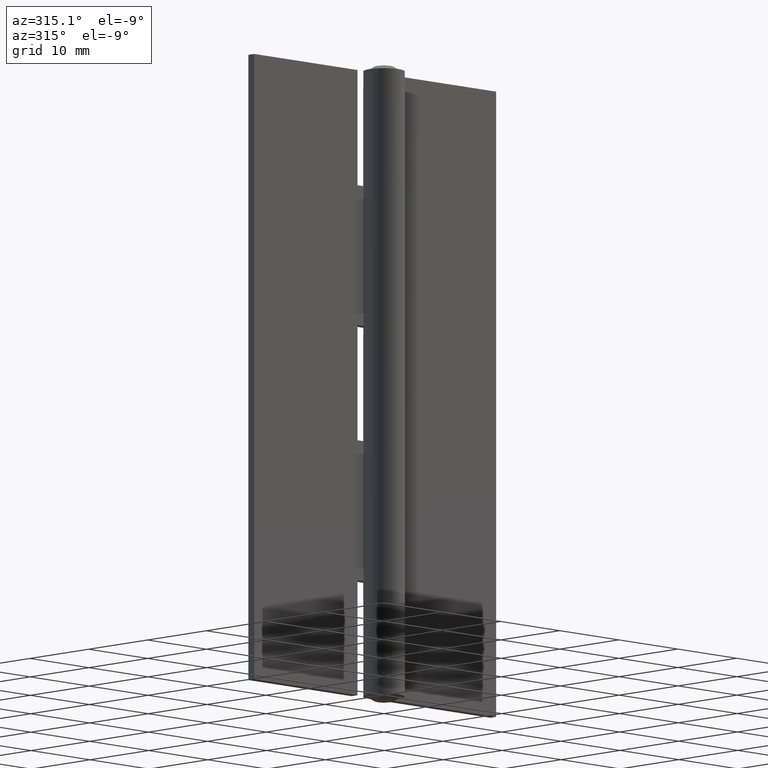
[diagram: clean part render]
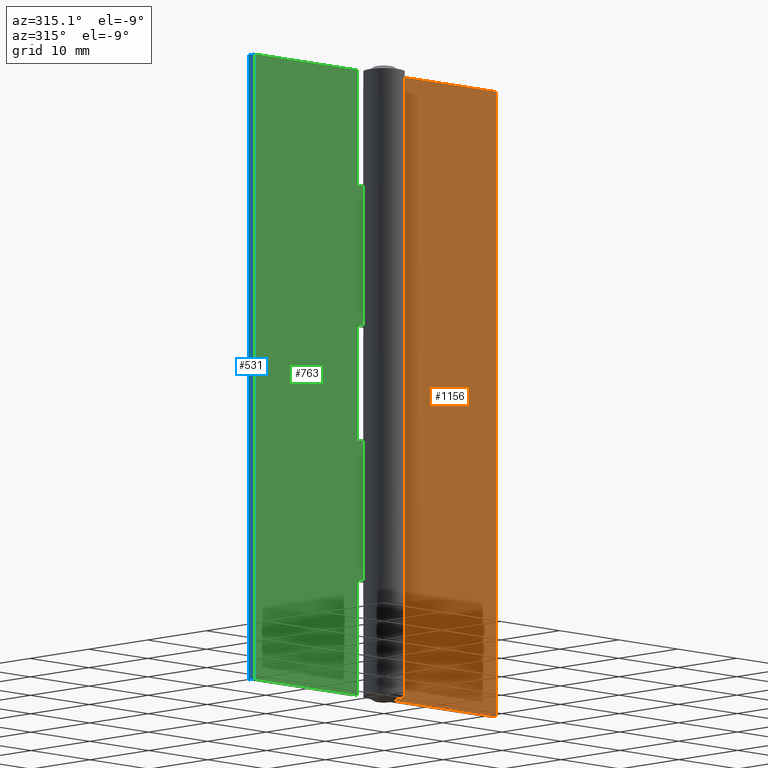
[diagram: same view with three faces highlighted in distinct colors, each labeled with its STEP entity id]
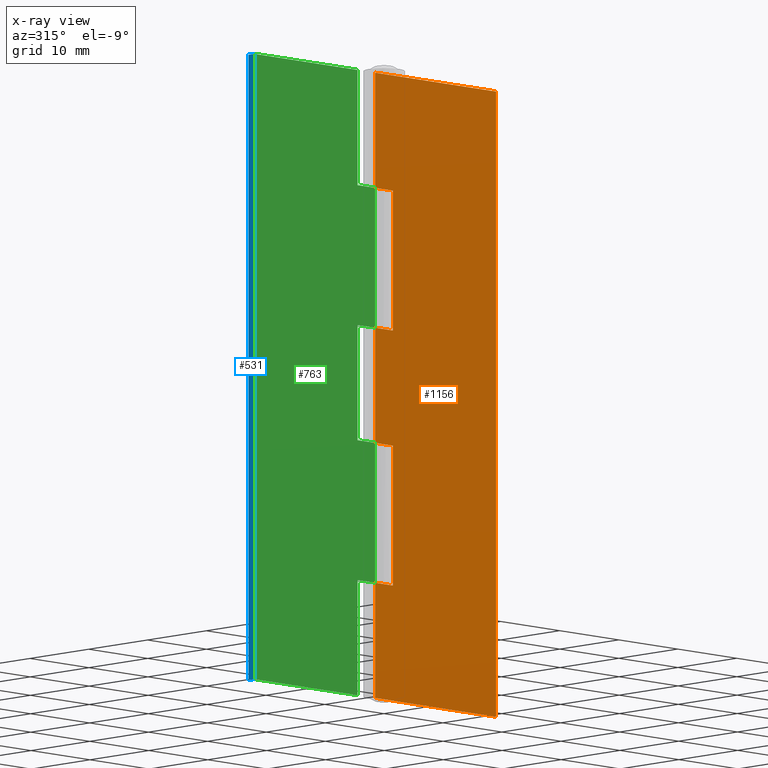
[diagram: x-ray of the same camera — body ghosted, the three highlighted faces saturated]
A machine part, auxiliary view with three faces highlighted in distinct colors.
The next image is the same camera in x-ray (body ghosted, the three faces saturated) — at least one of them is partly hidden behind the body in this view.
Their STEP definitions:

[orange] entity #1156 — the highlighted face is a freeform B-spline surface patch.
#790=CARTESIAN_POINT('',(0.0,1.499999000000000,14.0));
#791=VERTEX_POINT('',#790);
#826=CARTESIAN_POINT('',(0.0,1.499999000000000,0.0));
#827=VERTEX_POINT('',#826);
#856=CARTESIAN_POINT('',(0.0,1.499999000000000,14.0));
#857=CARTESIAN_POINT('',(0.0,1.499999000000000,0.0));
#858=QUASI_UNIFORM_CURVE('',1,(#856,#857),.UNSPECIFIED.,.F.,.U.);
#859=EDGE_CURVE('',#791,#827,#858,.T.);
#922=CARTESIAN_POINT('',(0.0,1.499999000000000,62.0));
#923=VERTEX_POINT('',#922);
#953=CARTESIAN_POINT('',(0.0,1.499999000000000,76.0));
#954=VERTEX_POINT('',#953);
#955=CARTESIAN_POINT('',(0.0,1.499999000000000,76.0));
#956=CARTESIAN_POINT('',(0.0,1.499999000000000,62.0));
#957=QUASI_UNIFORM_CURVE('',1,(#955,#956),.UNSPECIFIED.,.F.,.U.);
#958=EDGE_CURVE('',#954,#923,#957,.T.);
#1015=CARTESIAN_POINT('',(0.0,1.499999000000000,45.0));
#1016=VERTEX_POINT('',#1015);
#1050=CARTESIAN_POINT('',(0.0,1.499999000000000,31.0));
#1051=VERTEX_POINT('',#1050);
#1081=CARTESIAN_POINT('',(0.0,1.499999000000000,45.0));
#1082=CARTESIAN_POINT('',(0.0,1.499999000000000,31.0));
#1083=QUASI_UNIFORM_CURVE('',1,(#1081,#1082),.UNSPECIFIED.,.F.,.U.);
#1084=EDGE_CURVE('',#1016,#1051,#1083,.T.);
#1089=CARTESIAN_POINT('',(-1.023974960267020,1.499999000000000,79.796199852697242));
#1090=CARTESIAN_POINT('',(-1.023974960267020,1.499999000000000,-3.796201891176099));
#1091=CARTESIAN_POINT('',(21.523975510119872,1.499999000000000,79.796199852697242));
#1092=CARTESIAN_POINT('',(21.523975510119872,1.499999000000000,-3.796201891176099));
#1093=B_SPLINE_SURFACE_WITH_KNOTS('',1,1,((#1089,#1091),(#1090,#1092)),.UNSPECIFIED.,.F.,.F.,.U.,(2,2),(2,2),(0.0,83.592401743873339),(0.0,22.547950470386890),.UNSPECIFIED.);
#1094=CARTESIAN_POINT('',(3.000000000000085,1.499998999999974,62.0));
#1095=VERTEX_POINT('',#1094);
#1096=CARTESIAN_POINT('',(3.000000000000085,1.499998999999974,45.0));
#1097=VERTEX_POINT('',#1096);
#1098=CARTESIAN_POINT('',(3.000000000000085,1.499998999999974,62.0));
#1099=CARTESIAN_POINT('',(3.000000000000085,1.499998999999974,45.0));
#1100=QUASI_UNIFORM_CURVE('',1,(#1098,#1099),.UNSPECIFIED.,.F.,.U.);
#1101=EDGE_CURVE('',#1095,#1097,#1100,.T.);
#1102=ORIENTED_EDGE('',*,*,#1101,.T.);
#1103=CARTESIAN_POINT('',(3.000000000000085,1.499998999999974,45.0));
#1104=CARTESIAN_POINT('',(0.0,1.499999000000000,45.0));
#1105=QUASI_UNIFORM_CURVE('',1,(#1103,#1104),.UNSPECIFIED.,.F.,.U.);
#1106=EDGE_CURVE('',#1097,#1016,#1105,.T.);
#1107=ORIENTED_EDGE('',*,*,#1106,.T.);
#1108=ORIENTED_EDGE('',*,*,#1084,.T.);
#1109=CARTESIAN_POINT('',(3.000000000000085,1.499998999999974,31.0));
#1110=VERTEX_POINT('',#1109);
#1111=CARTESIAN_POINT('',(0.0,1.499999000000000,31.0));
#1112=CARTESIAN_POINT('',(3.000000000000085,1.499998999999974,31.0));
#1113=QUASI_UNIFORM_CURVE('',1,(#1111,#1112),.UNSPECIFIED.,.F.,.U.);
#1114=EDGE_CURVE('',#1051,#1110,#1113,.T.);
#1115=ORIENTED_EDGE('',*,*,#1114,.T.);
#1116=CARTESIAN_POINT('',(3.000000000000085,1.499998999999974,14.0));
#1117=VERTEX_POINT('',#1116);
#1118=CARTESIAN_POINT('',(3.000000000000085,1.499998999999974,31.0));
#1119=CARTESIAN_POINT('',(3.000000000000085,1.499998999999974,14.0));
#1120=QUASI_UNIFORM_CURVE('',1,(#1118,#1119),.UNSPECIFIED.,.F.,.U.);
#1121=EDGE_CURVE('',#1110,#1117,#1120,.T.);
#1122=ORIENTED_EDGE('',*,*,#1121,.T.);
#1123=CARTESIAN_POINT('',(3.000000000000085,1.499998999999974,14.0));
#1124=CARTESIAN_POINT('',(0.0,1.499999000000000,14.0));
#1125=QUASI_UNIFORM_CURVE('',1,(#1123,#1124),.UNSPECIFIED.,.F.,.U.);
#1126=EDGE_CURVE('',#1117,#791,#1125,.T.);
#1127=ORIENTED_EDGE('',*,*,#1126,.T.);
#1128=ORIENTED_EDGE('',*,*,#859,.T.);
#1129=CARTESIAN_POINT('',(20.500000000000000,1.499999000000000,0.0));
#1130=VERTEX_POINT('',#1129);
#1131=CARTESIAN_POINT('',(20.500000000000000,1.499999000000000,0.0));
#1132=CARTESIAN_POINT('',(0.0,1.499999000000000,0.0));
#1133=QUASI_UNIFORM_CURVE('',1,(#1131,#1132),.UNSPECIFIED.,.F.,.U.);
#1134=EDGE_CURVE('',#1130,#827,#1133,.T.);
#1135=ORIENTED_EDGE('',*,*,#1134,.F.);
#1136=CARTESIAN_POINT('',(20.500000000000000,1.499999000000000,76.0));
#1137=VERTEX_POINT('',#1136);
#1138=CARTESIAN_POINT('',(20.500000000000000,1.499999000000000,76.0));
#1139=CARTESIAN_POINT('',(20.500000000000000,1.499999000000000,0.0));
#1140=QUASI_UNIFORM_CURVE('',1,(#1138,#1139),.UNSPECIFIED.,.F.,.U.);
#1141=EDGE_CURVE('',#1137,#1130,#1140,.T.);
#1142=ORIENTED_EDGE('',*,*,#1141,.F.);
#1143=CARTESIAN_POINT('',(20.500000000000000,1.499999000000000,76.0));
#1144=CARTESIAN_POINT('',(0.0,1.499999000000000,76.0));
#1145=QUASI_UNIFORM_CURVE('',1,(#1143,#1144),.UNSPECIFIED.,.F.,.U.);
#1146=EDGE_CURVE('',#1137,#954,#1145,.T.);
#1147=ORIENTED_EDGE('',*,*,#1146,.T.);
#1148=ORIENTED_EDGE('',*,*,#958,.T.);
#1149=CARTESIAN_POINT('',(0.0,1.499999000000000,62.0));
#1150=CARTESIAN_POINT('',(3.000000000000085,1.499998999999974,62.0));
#1151=QUASI_UNIFORM_CURVE('',1,(#1149,#1150),.UNSPECIFIED.,.F.,.U.);
#1152=EDGE_CURVE('',#923,#1095,#1151,.T.);
#1153=ORIENTED_EDGE('',*,*,#1152,.T.);
#1154=EDGE_LOOP('',(#1102,#1107,#1108,#1115,#1122,#1127,#1128,#1135,#1142,#1147,#1148,#1153));
#1155=FACE_OUTER_BOUND('',#1154,.T.);
#1156=ADVANCED_FACE('',(#1155),#1093,.T.);

[blue] entity #531 — the highlighted face is a freeform B-spline surface patch.
#482=CARTESIAN_POINT('',(-20.500000000000000,1.499999000000000,0.0));
#483=VERTEX_POINT('',#482);
#489=CARTESIAN_POINT('',(-20.500000000000000,2.499999000000000,0.0));
#490=VERTEX_POINT('',#489);
#491=CARTESIAN_POINT('',(-20.500000000000000,2.499999000000000,0.0));
#492=CARTESIAN_POINT('',(-20.500000000000000,1.499999000000000,0.0));
#493=QUASI_UNIFORM_CURVE('',1,(#491,#492),.UNSPECIFIED.,.F.,.U.);
#494=EDGE_CURVE('',#490,#483,#493,.T.);
#504=CARTESIAN_POINT('',(-20.500000000000000,1.450049001938194,79.796199852697242));
#505=CARTESIAN_POINT('',(-20.500000000000000,1.450049001938194,-3.796201891176099));
#506=CARTESIAN_POINT('',(-20.500000000000000,2.549949024883897,79.796199852697242));
#507=CARTESIAN_POINT('',(-20.500000000000000,2.549949024883897,-3.796201891176099));
#508=B_SPLINE_SURFACE_WITH_KNOTS('',1,1,((#504,#506),(#505,#507)),.UNSPECIFIED.,.F.,.F.,.U.,(2,2),(2,2),(0.0,83.592401743873339),(0.041708334948495,0.958291687403247),.UNSPECIFIED.);
#509=ORIENTED_EDGE('',*,*,#494,.T.);
#510=CARTESIAN_POINT('',(-20.500000000000000,1.499999000000000,76.0));
#511=VERTEX_POINT('',#510);
#512=CARTESIAN_POINT('',(-20.500000000000000,1.499999000000000,76.0));
#513=CARTESIAN_POINT('',(-20.500000000000000,1.499999000000000,0.0));
#514=QUASI_UNIFORM_CURVE('',1,(#512,#513),.UNSPECIFIED.,.F.,.U.);
#515=EDGE_CURVE('',#511,#483,#514,.T.);
#516=ORIENTED_EDGE('',*,*,#515,.F.);
#517=CARTESIAN_POINT('',(-20.500000000000000,2.499999000000000,76.0));
#518=VERTEX_POINT('',#517);
#519=CARTESIAN_POINT('',(-20.500000000000000,2.499999000000000,76.0));
#520=CARTESIAN_POINT('',(-20.500000000000000,1.499999000000000,76.0));
#521=QUASI_UNIFORM_CURVE('',1,(#519,#520),.UNSPECIFIED.,.F.,.U.);
#522=EDGE_CURVE('',#518,#511,#521,.T.);
#523=ORIENTED_EDGE('',*,*,#522,.F.);
#524=CARTESIAN_POINT('',(-20.500000000000000,2.499999000000000,76.0));
#525=CARTESIAN_POINT('',(-20.500000000000000,2.499999000000000,0.0));
#526=QUASI_UNIFORM_CURVE('',1,(#524,#525),.UNSPECIFIED.,.F.,.U.);
#527=EDGE_CURVE('',#518,#490,#526,.T.);
#528=ORIENTED_EDGE('',*,*,#527,.T.);
#529=EDGE_LOOP('',(#509,#516,#523,#528));
#530=FACE_OUTER_BOUND('',#529,.T.);
#531=ADVANCED_FACE('',(#530),#508,.F.);

[green] entity #763 — the highlighted face is a freeform B-spline surface patch.
#10=CARTESIAN_POINT('',(-3.0,1.499998999999974,76.0));
#11=VERTEX_POINT('',#10);
#12=CARTESIAN_POINT('',(-3.0,1.499998999999974,62.0));
#13=VERTEX_POINT('',#12);
#14=CARTESIAN_POINT('',(-3.0,1.499998999999974,76.0));
#15=CARTESIAN_POINT('',(-3.0,1.499998999999974,62.0));
#16=QUASI_UNIFORM_CURVE('',1,(#14,#15),.UNSPECIFIED.,.F.,.U.);
#17=EDGE_CURVE('',#11,#13,#16,.T.);
#46=CARTESIAN_POINT('',(0.0,1.499999000000000,62.0));
#47=VERTEX_POINT('',#46);
#48=CARTESIAN_POINT('',(-3.0,1.499998999999974,62.0));
#49=CARTESIAN_POINT('',(0.0,1.499999000000000,62.0));
#50=QUASI_UNIFORM_CURVE('',1,(#48,#49),.UNSPECIFIED.,.F.,.U.);
#51=EDGE_CURVE('',#13,#47,#50,.T.);
#176=CARTESIAN_POINT('',(0.0,1.499999000000000,14.0));
#177=VERTEX_POINT('',#176);
#207=CARTESIAN_POINT('',(-3.0,1.499998999999974,14.0));
#208=VERTEX_POINT('',#207);
#209=CARTESIAN_POINT('',(-3.0,1.499998999999974,14.0));
#210=CARTESIAN_POINT('',(0.0,1.499999000000000,14.0));
#211=QUASI_UNIFORM_CURVE('',1,(#209,#210),.UNSPECIFIED.,.F.,.U.);
#212=EDGE_CURVE('',#208,#177,#211,.T.);
#234=CARTESIAN_POINT('',(-3.0,1.499999000000000,-1.421085E-014));
#235=VERTEX_POINT('',#234);
#249=CARTESIAN_POINT('',(-3.0,1.499999000000000,-1.421085E-014));
#250=CARTESIAN_POINT('',(-3.0,1.499998999999974,14.0));
#251=QUASI_UNIFORM_CURVE('',1,(#249,#250),.UNSPECIFIED.,.F.,.U.);
#252=EDGE_CURVE('',#235,#208,#251,.T.);
#262=CARTESIAN_POINT('',(-3.0,1.499998999999974,45.0));
#263=VERTEX_POINT('',#262);
#318=CARTESIAN_POINT('',(0.0,1.499999000000000,45.0));
#319=VERTEX_POINT('',#318);
#349=CARTESIAN_POINT('',(-3.0,1.499998999999974,45.0));
#350=CARTESIAN_POINT('',(0.0,1.499999000000000,45.0));
#351=QUASI_UNIFORM_CURVE('',1,(#349,#350),.UNSPECIFIED.,.F.,.U.);
#352=EDGE_CURVE('',#263,#319,#351,.T.);
#362=CARTESIAN_POINT('',(-3.0,1.499998999999974,31.0));
#363=VERTEX_POINT('',#362);
#377=CARTESIAN_POINT('',(-3.0,1.499998999999974,31.0));
#378=CARTESIAN_POINT('',(-3.0,1.499998999999974,45.0));
#379=QUASI_UNIFORM_CURVE('',1,(#377,#378),.UNSPECIFIED.,.F.,.U.);
#380=EDGE_CURVE('',#363,#263,#379,.T.);
#392=CARTESIAN_POINT('',(0.0,1.499999000000000,31.0));
#393=VERTEX_POINT('',#392);
#468=CARTESIAN_POINT('',(0.0,1.499999000000000,31.0));
#469=CARTESIAN_POINT('',(-3.0,1.499998999999974,31.0));
#470=QUASI_UNIFORM_CURVE('',1,(#468,#469),.UNSPECIFIED.,.F.,.U.);
#471=EDGE_CURVE('',#393,#363,#470,.T.);
#482=CARTESIAN_POINT('',(-20.500000000000000,1.499999000000000,0.0));
#483=VERTEX_POINT('',#482);
#484=CARTESIAN_POINT('',(-20.500000000000000,1.499999000000000,0.0));
#485=CARTESIAN_POINT('',(-3.0,1.499999000000000,-1.421085E-014));
#486=QUASI_UNIFORM_CURVE('',1,(#484,#485),.UNSPECIFIED.,.F.,.U.);
#487=EDGE_CURVE('',#483,#235,#486,.T.);
#510=CARTESIAN_POINT('',(-20.500000000000000,1.499999000000000,76.0));
#511=VERTEX_POINT('',#510);
#512=CARTESIAN_POINT('',(-20.500000000000000,1.499999000000000,76.0));
#513=CARTESIAN_POINT('',(-20.500000000000000,1.499999000000000,0.0));
#514=QUASI_UNIFORM_CURVE('',1,(#512,#513),.UNSPECIFIED.,.F.,.U.);
#515=EDGE_CURVE('',#511,#483,#514,.T.);
#607=CARTESIAN_POINT('',(0.0,1.499999000000000,31.0));
#608=CARTESIAN_POINT('',(0.0,1.499999000000000,14.0));
#609=QUASI_UNIFORM_CURVE('',1,(#607,#608),.UNSPECIFIED.,.F.,.U.);
#610=EDGE_CURVE('',#393,#177,#609,.T.);
#630=CARTESIAN_POINT('',(-20.500000000000000,1.499999000000000,76.0));
#631=CARTESIAN_POINT('',(-3.0,1.499998999999974,76.0));
#632=QUASI_UNIFORM_CURVE('',1,(#630,#631),.UNSPECIFIED.,.F.,.U.);
#633=EDGE_CURVE('',#511,#11,#632,.T.);
#734=CARTESIAN_POINT('',(0.0,1.499999000000000,62.0));
#735=CARTESIAN_POINT('',(0.0,1.499999000000000,45.0));
#736=QUASI_UNIFORM_CURVE('',1,(#734,#735),.UNSPECIFIED.,.F.,.U.);
#737=EDGE_CURVE('',#47,#319,#736,.T.);
#744=CARTESIAN_POINT('',(-21.523974960267029,1.499999000000000,-3.796199852697270));
#745=CARTESIAN_POINT('',(-21.523974960267029,1.499999000000000,79.796201891176096));
#746=CARTESIAN_POINT('',(1.023975510119869,1.499999000000000,-3.796199852697270));
#747=CARTESIAN_POINT('',(1.023975510119869,1.499999000000000,79.796201891176096));
#748=B_SPLINE_SURFACE_WITH_KNOTS('',1,1,((#744,#746),(#745,#747)),.UNSPECIFIED.,.F.,.F.,.U.,(2,2),(2,2),(0.0,83.592401743873367),(0.0,22.547950470386890),.UNSPECIFIED.);
#749=ORIENTED_EDGE('',*,*,#17,.F.);
#750=ORIENTED_EDGE('',*,*,#633,.F.);
#751=ORIENTED_EDGE('',*,*,#515,.T.);
#752=ORIENTED_EDGE('',*,*,#487,.T.);
#753=ORIENTED_EDGE('',*,*,#252,.T.);
#754=ORIENTED_EDGE('',*,*,#212,.T.);
#755=ORIENTED_EDGE('',*,*,#610,.F.);
#756=ORIENTED_EDGE('',*,*,#471,.T.);
#757=ORIENTED_EDGE('',*,*,#380,.T.);
#758=ORIENTED_EDGE('',*,*,#352,.T.);
#759=ORIENTED_EDGE('',*,*,#737,.F.);
#760=ORIENTED_EDGE('',*,*,#51,.F.);
#761=EDGE_LOOP('',(#749,#750,#751,#752,#753,#754,#755,#756,#757,#758,#759,#760));
#762=FACE_OUTER_BOUND('',#761,.T.);
#763=ADVANCED_FACE('',(#762),#748,.F.);